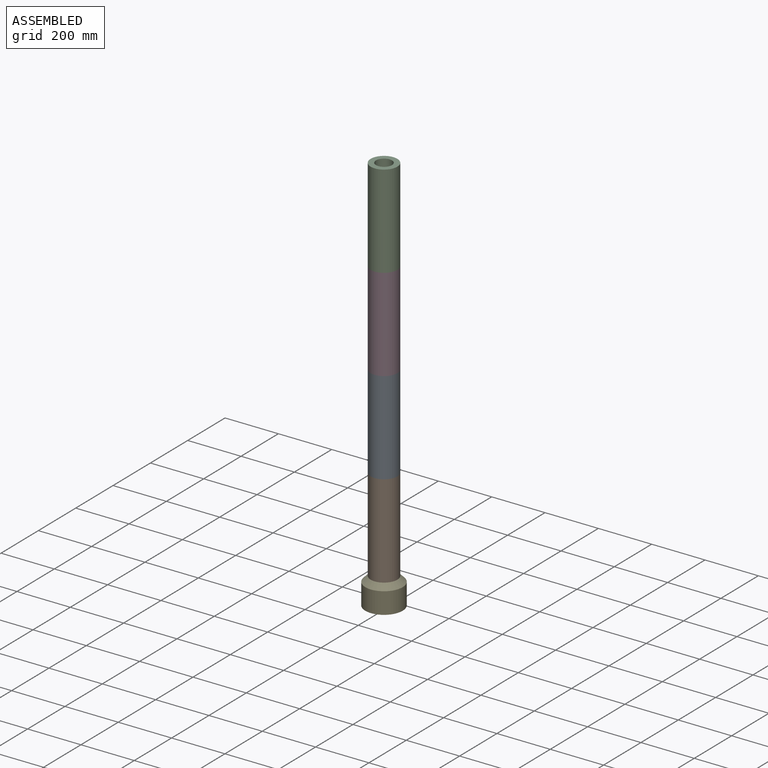
[diagram: assembled view]
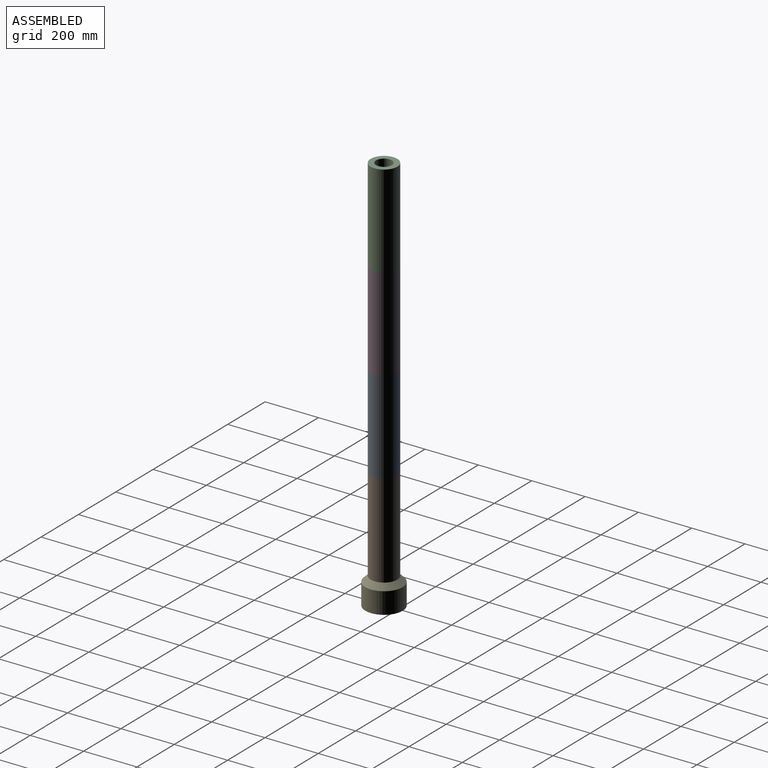
[diagram: assembled view, second angle]
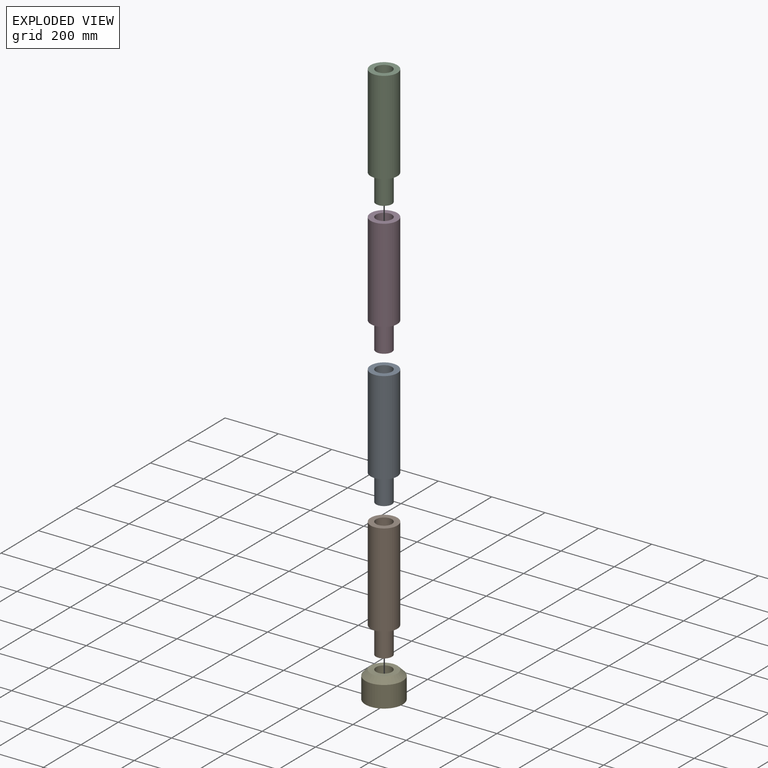
[diagram: exploded view]
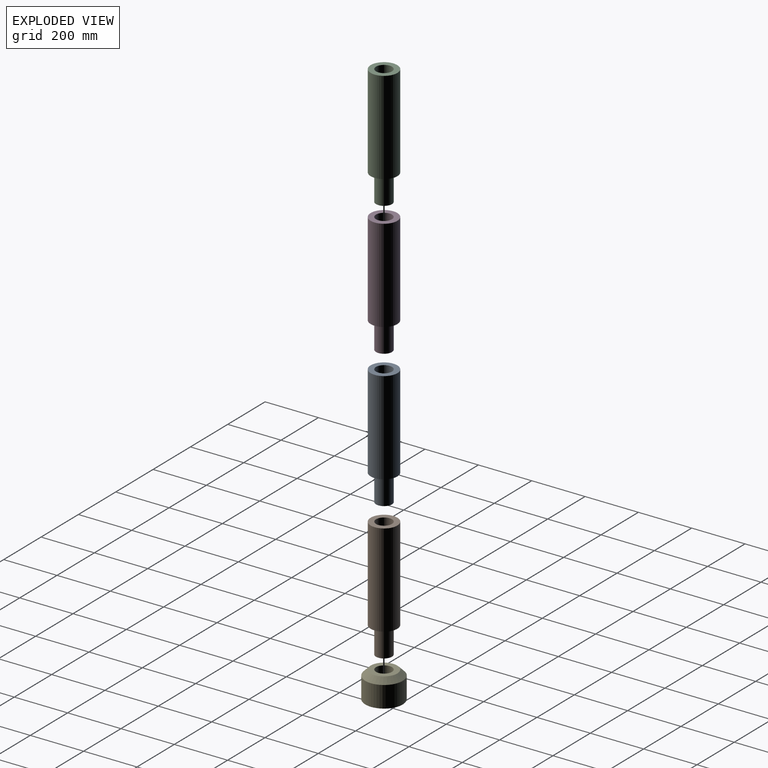
[diagram: exploded view, second angle]
ASSEMBLY  parts=5 mates=4
PART A: 7 faces, bbox 100x100x450 mm
  f0: cylinder r=30mm len=100mm, axis (0,0,-1), area 18849.6mm2, adj f2,f4
  f1: cylinder r=50mm len=350mm, axis (0,0,-1), area 109955.7mm2, adj f2,f3
  f2: plane 100x100mm, normal (0,0,1), area 5026.5mm2, adj f0,f1
  f3: plane 100x100mm, normal (0,0,-1), area 5026.5mm2, adj f1,f5
  f4: plane 60x60mm, normal (0,0,1), area 2827.4mm2, adj f0
  f5: cylinder r=30mm len=100mm, axis (0,0,1), area 18849.6mm2, adj f3,f6
  f6: plane 60x60mm, normal (0,0,-1), area 2827.4mm2, adj f5
PART B: same geometry as A
PART C: same geometry as A
PART D: same geometry as A
PART E: 6 faces, bbox 140x140x100 mm
  f0: cylinder r=30mm len=80mm, axis (0,0,-1), area 15079.6mm2, adj f1,f2
  f1: plane 100x100mm, normal (0,0,1), area 5026.5mm2, adj f0,f5
  f2: plane 60x60mm, normal (0,0,1), area 2827.4mm2, adj f0
  f3: cylinder r=70mm len=140mm, axis (0,0,-1), area 35185.8mm2, adj f4,f5
  f4: plane 140x140mm, normal (0,0,-1), area 15393.8mm2, adj f3
  f5: cone r=50mm half-angle=45deg, axis (0,0,-1), area 10662.9mm2, adj f1,f3
PLACE A t=(0,166.52,-21.91)mm
PLACE B t=(0,166.52,-371.91)mm
PLACE C t=(0,166.52,678.09)mm
PLACE D t=(0,166.52,328.09)mm
PLACE E t=(0,166.52,-471.91)mm
MATE slider B.f0 <-> E.f3  axis (0,0,-1) through (0,166.52,-471.91)mm
MATE slider D.f0 <-> A.f0  axis (0,0,-1) through (0,166.52,228.09)mm
MATE slider C.f0 <-> D.f0  axis (0,0,-1) through (0,166.52,578.09)mm
MATE slider A.f0 <-> B.f0  axis (0,0,-1) through (0,166.52,-121.91)mm
